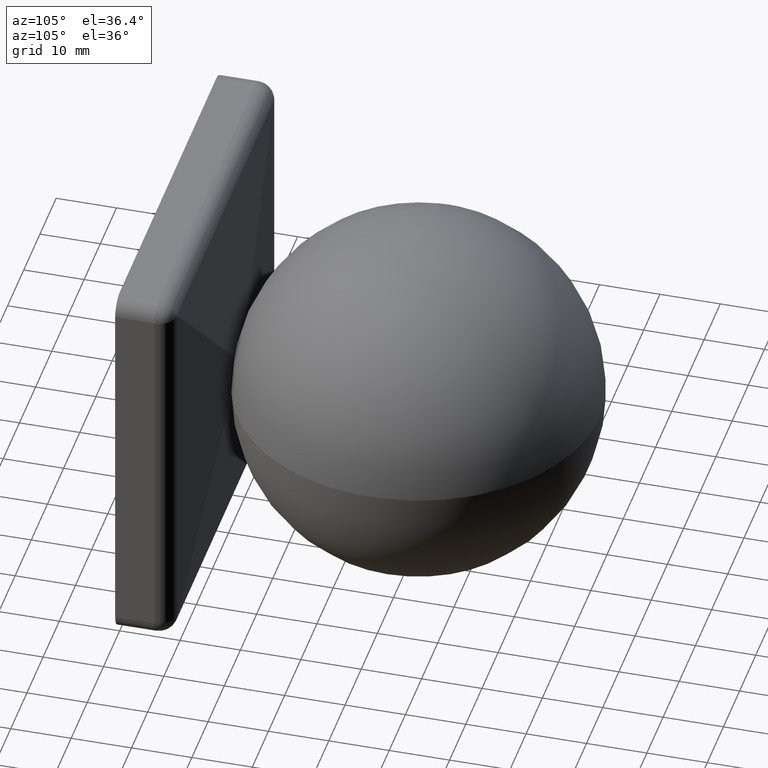
[diagram: clean part render]
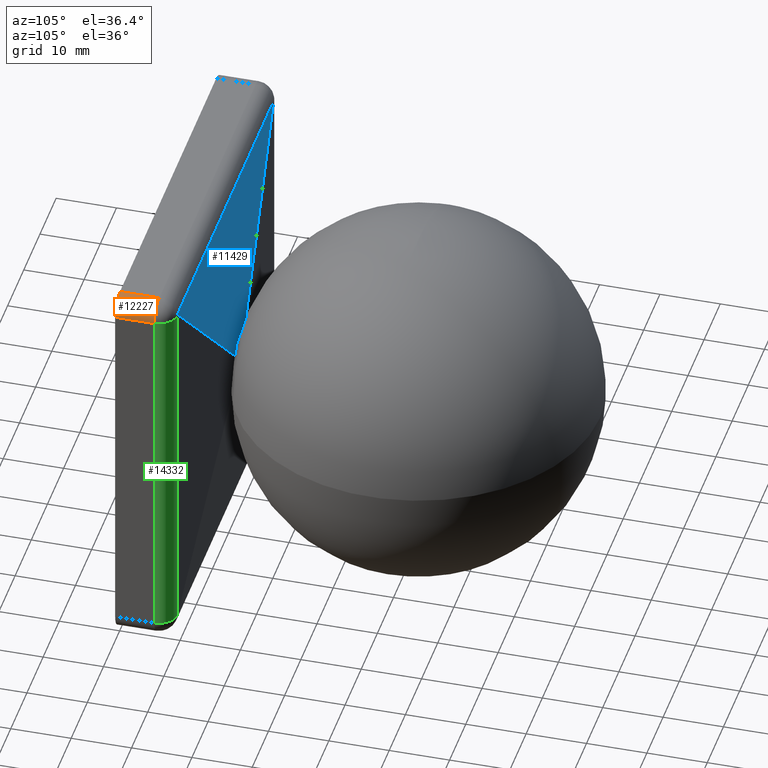
[diagram: same view with three faces highlighted in distinct colors, each labeled with its STEP entity id]
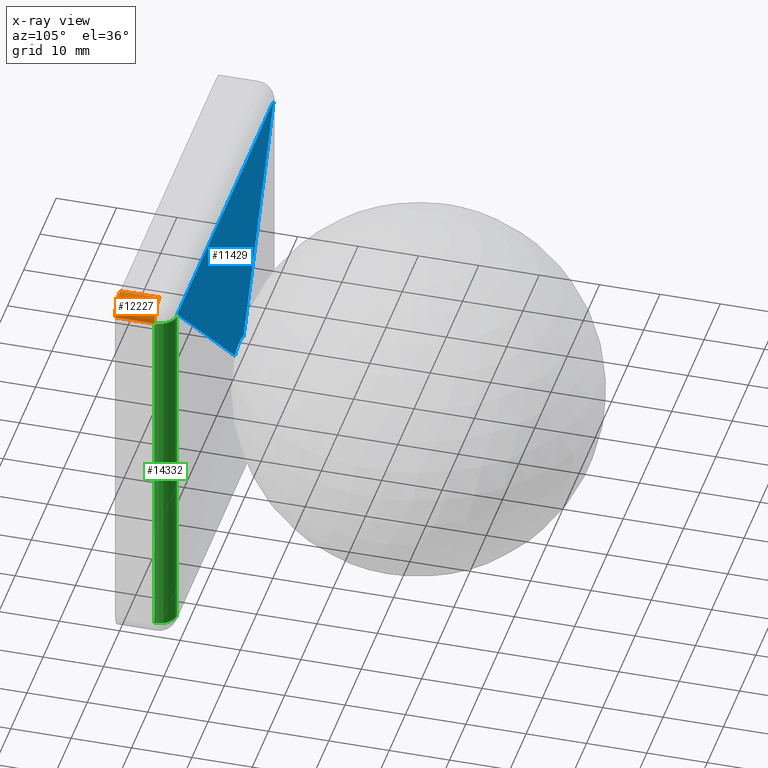
[diagram: x-ray of the same camera — body ghosted, the three highlighted faces saturated]
A machine part, auxiliary view with three faces highlighted in distinct colors.
The next image is the same camera in x-ray (body ghosted, the three faces saturated) — at least one of them is partly hidden behind the body in this view.
Their STEP definitions:

[orange] entity #12227 — the highlighted cylindrical surface (edge-blend (fillet) strip) has radius 3 mm, axis along (0, -1, 0).
#971 = VERTEX_POINT ( 'NONE', #11236 ) ;
#1854 = DIRECTION ( 'NONE',  ( 0.0000000000000000000, -1.000000000000000000, 0.0000000000000000000 ) ) ;
#2121 = CARTESIAN_POINT ( 'NONE',  ( 32.74999999999997200, 6.500000000000000000, 29.75000000000000000 ) ) ;
#2557 = EDGE_CURVE ( 'NONE', #15582, #7247, #12072, .T. ) ;
#2937 = CARTESIAN_POINT ( 'NONE',  ( 32.74999999999997200, 0.0000000000000000000, 29.75000000000000000 ) ) ;
#3769 = CARTESIAN_POINT ( 'NONE',  ( 29.74999999999997500, 12.00000000000000000, 29.75000000000000000 ) ) ;
#3960 = ORIENTED_EDGE ( 'NONE', *, *, #11026, .F. ) ;
#4032 = AXIS2_PLACEMENT_3D ( 'NONE', #8531, #1854, #12515 ) ;
#4244 = ORIENTED_EDGE ( 'NONE', *, *, #2557, .F. ) ;
#4653 = CARTESIAN_POINT ( 'NONE',  ( 32.74999999999997200, 12.00000000000000000, 29.75000000000000000 ) ) ;
#5450 = DIRECTION ( 'NONE',  ( 0.0000000000000000000, 0.0000000000000000000, 1.000000000000000000 ) ) ;
#5669 = VECTOR ( 'NONE', #13859, 1000.000000000000000 ) ;
#6537 = EDGE_CURVE ( 'NONE', #15582, #15337, #10660, .T. ) ;
#7130 = DIRECTION ( 'NONE',  ( 0.0000000000000000000, -1.000000000000000000, 0.0000000000000000000 ) ) ;
#7247 = VERTEX_POINT ( 'NONE', #2937 ) ;
#8011 = CARTESIAN_POINT ( 'NONE',  ( 29.74999999999997500, 6.500000000000000000, 32.74999999999996400 ) ) ;
#8269 = AXIS2_PLACEMENT_3D ( 'NONE', #11984, #13290, #5450 ) ;
#8531 = CARTESIAN_POINT ( 'NONE',  ( 29.74999999999997500, 6.500000000000000900, 29.75000000000000000 ) ) ;
#8546 = FACE_OUTER_BOUND ( 'NONE', #9380, .T. ) ;
#8786 = ORIENTED_EDGE ( 'NONE', *, *, #6537, .T. ) ;
#9016 = DIRECTION ( 'NONE',  ( 0.0000000000000000000, 0.0000000000000000000, -1.000000000000000000 ) ) ;
#9380 = EDGE_LOOP ( 'NONE', ( #4244, #8786, #3960, #10299 ) ) ;
#10231 = AXIS2_PLACEMENT_3D ( 'NONE', #3769, #13967, #9016 ) ;
#10299 = ORIENTED_EDGE ( 'NONE', *, *, #13159, .F. ) ;
#10360 = CYLINDRICAL_SURFACE ( 'NONE', #10231, 2.999999999999999100 ) ;
#10660 = CIRCLE ( 'NONE', #4032, 2.999999999999995600 ) ;
#11026 = EDGE_CURVE ( 'NONE', #971, #15337, #12841, .T. ) ;
#11236 = CARTESIAN_POINT ( 'NONE',  ( 29.74999999999997200, 0.0000000000000000000, 32.75000000000000000 ) ) ;
#11984 = CARTESIAN_POINT ( 'NONE',  ( 29.74999999999997500, 0.0000000000000000000, 29.75000000000000000 ) ) ;
#12072 = LINE ( 'NONE', #4653, #15154 ) ;
#12227 = ADVANCED_FACE ( 'NONE', ( #8546 ), #10360, .T. ) ;
#12398 = CIRCLE ( 'NONE', #8269, 3.000000000000002700 ) ;
#12515 = DIRECTION ( 'NONE',  ( 0.0000000000000000000, 0.0000000000000000000, -1.000000000000000000 ) ) ;
#12841 = LINE ( 'NONE', #16619, #5669 ) ;
#13159 = EDGE_CURVE ( 'NONE', #7247, #971, #12398, .T. ) ;
#13290 = DIRECTION ( 'NONE',  ( -0.0000000000000000000, -1.000000000000000000, -0.0000000000000000000 ) ) ;
#13859 = DIRECTION ( 'NONE',  ( -0.0000000000000000000, 1.000000000000000000, -0.0000000000000000000 ) ) ;
#13967 = DIRECTION ( 'NONE',  ( 0.0000000000000000000, -1.000000000000000000, 0.0000000000000000000 ) ) ;
#15154 = VECTOR ( 'NONE', #7130, 1000.000000000000000 ) ;
#15337 = VERTEX_POINT ( 'NONE', #8011 ) ;
#15582 = VERTEX_POINT ( 'NONE', #2121 ) ;
#16619 = CARTESIAN_POINT ( 'NONE',  ( 29.74999999999997200, 12.00000000000000000, 32.75000000000000000 ) ) ;

[blue] entity #11429 — the highlighted planar face has unit normal (-0, -0.9965, -0.0837).
#1 = LINE ( 'NONE', #8708, #11309 ) ;
#84 = DIRECTION ( 'NONE',  ( -0.7058617423977314700, 0.05931611280653215100, -0.7058617423977314700 ) ) ;
#287 = CIRCLE ( 'NONE', #14106, 6.039178573658209500 ) ;
#656 = EDGE_CURVE ( 'NONE', #10926, #10083, #287, .T. ) ;
#928 = VERTEX_POINT ( 'NONE', #5682 ) ;
#2051 = CARTESIAN_POINT ( 'NONE',  ( 2.680674384043339600, 11.76419654488343300, 2.931889787391667400 ) ) ;
#2280 = DIRECTION ( 'NONE',  ( -1.859367499585374500E-017, -0.9964877666150213600, -0.08373846778277503600 ) ) ;
#2949 = AXIS2_PLACEMENT_3D ( 'NONE', #11470, #2280, #7527 ) ;
#2992 = EDGE_CURVE ( 'NONE', #10926, #5089, #1, .T. ) ;
#4891 = DIRECTION ( 'NONE',  ( 1.859367499585374500E-017, 0.9964877666150213600, 0.08373846778277503600 ) ) ;
#5089 = VERTEX_POINT ( 'NONE', #14001 ) ;
#5682 = CARTESIAN_POINT ( 'NONE',  ( 29.74999999999996800, 9.489463299845061400, 30.00121540334829000 ) ) ;
#6613 = DIRECTION ( 'NONE',  ( -1.000000000000000000, -0.0000000000000000000, 2.220446049250313100E-016 ) ) ;
#7495 = EDGE_CURVE ( 'NONE', #928, #5089, #10246, .T. ) ;
#7527 = DIRECTION ( 'NONE',  ( 0.0000000000000000000, 0.08373846778277503600, -0.9964877666150213600 ) ) ;
#7869 = ORIENTED_EDGE ( 'NONE', *, *, #7495, .F. ) ;
#8708 = CARTESIAN_POINT ( 'NONE',  ( -29.87516576338098800, 9.478945168468506200, 30.12638116672932000 ) ) ;
#8898 = PLANE ( 'NONE',  #2949 ) ;
#10083 = VERTEX_POINT ( 'NONE', #2051 ) ;
#10246 = LINE ( 'NONE', #13298, #15167 ) ;
#10926 = VERTEX_POINT ( 'NONE', #12393 ) ;
#10930 = LINE ( 'NONE', #17021, #12157 ) ;
#11102 = DIRECTION ( 'NONE',  ( -0.7058617423977313600, -0.05931611280653213000, 0.7058617423977315800 ) ) ;
#11309 = VECTOR ( 'NONE', #11102, 1000.000000000000100 ) ;
#11429 = ADVANCED_FACE ( 'NONE', ( #15704 ), #8898, .F. ) ;
#11470 = CARTESIAN_POINT ( 'NONE',  ( 32.74999999999997900, 11.92635412096560200, 1.002214632013910500 ) ) ;
#11701 = EDGE_LOOP ( 'NONE', ( #14249, #13480, #7869, #15942 ) ) ;
#12157 = VECTOR ( 'NONE', #84, 1000.000000000000100 ) ;
#12393 = CARTESIAN_POINT ( 'NONE',  ( -2.680674384043377800, 11.76419654488343600, 2.931889787391692300 ) ) ;
#12404 = CARTESIAN_POINT ( 'NONE',  ( -5.463909892804144000E-016, 12.21735755690978000, -2.460726255721871000 ) ) ;
#13298 = CARTESIAN_POINT ( 'NONE',  ( 32.74999999999998600, 9.489463299845061400, 30.00121540334829000 ) ) ;
#13480 = ORIENTED_EDGE ( 'NONE', *, *, #2992, .T. ) ;
#14001 = CARTESIAN_POINT ( 'NONE',  ( -29.74999999999997200, 9.489463299845061400, 30.00121540334830400 ) ) ;
#14106 = AXIS2_PLACEMENT_3D ( 'NONE', #12404, #4891, #15428 ) ;
#14249 = ORIENTED_EDGE ( 'NONE', *, *, #656, .F. ) ;
#14603 = EDGE_CURVE ( 'NONE', #928, #10083, #10930, .T. ) ;
#15167 = VECTOR ( 'NONE', #6613, 1000.000000000000000 ) ;
#15428 = DIRECTION ( 'NONE',  ( 0.0000000000000000000, 0.08373846778277513300, -0.9964877666150212500 ) ) ;
#15704 = FACE_OUTER_BOUND ( 'NONE', #11701, .T. ) ;
#15942 = ORIENTED_EDGE ( 'NONE', *, *, #14603, .T. ) ;
#17021 = CARTESIAN_POINT ( 'NONE',  ( 16.69420695236083300, 10.58658876603322700, 16.94542235570916200 ) ) ;

[green] entity #14332 — the highlighted cylindrical surface (edge-blend (fillet) strip) has radius 3 mm, axis along (-0, -0, 1).
#417 = DIRECTION ( 'NONE',  ( 1.000000000000000000, 8.673617379884027600E-016, 0.0000000000000000000 ) ) ;
#532 = DIRECTION ( 'NONE',  ( -0.0000000000000000000, -0.0000000000000000000, 1.000000000000000000 ) ) ;
#755 = AXIS2_PLACEMENT_3D ( 'NONE', #7332, #532, #5888 ) ;
#784 = VERTEX_POINT ( 'NONE', #17026 ) ;
#1062 = LINE ( 'NONE', #2707, #5161 ) ;
#1315 = CARTESIAN_POINT ( 'NONE',  ( 30.00121540334829700, 9.489463299845061400, 29.74999999999997200 ) ) ;
#2121 = CARTESIAN_POINT ( 'NONE',  ( 32.74999999999997200, 6.500000000000000000, 29.75000000000000000 ) ) ;
#2348 = CIRCLE ( 'NONE', #3191, 3.000000000000002700 ) ;
#2404 = ORIENTED_EDGE ( 'NONE', *, *, #6280, .T. ) ;
#2630 = LINE ( 'NONE', #10286, #3261 ) ;
#2707 = CARTESIAN_POINT ( 'NONE',  ( 32.74999999999997200, 6.500000000000000000, -32.75000000000000000 ) ) ;
#2802 = CARTESIAN_POINT ( 'NONE',  ( 29.74999999999997200, 6.500000000000000900, -32.75000000000000000 ) ) ;
#2892 = CIRCLE ( 'NONE', #755, 3.000000000000002700 ) ;
#3191 = AXIS2_PLACEMENT_3D ( 'NONE', #11154, #3303, #417 ) ;
#3261 = VECTOR ( 'NONE', #15438, 1000.000000000000000 ) ;
#3303 = DIRECTION ( 'NONE',  ( 0.0000000000000000000, 0.0000000000000000000, -1.000000000000000000 ) ) ;
#4539 = ORIENTED_EDGE ( 'NONE', *, *, #15240, .T. ) ;
#5161 = VECTOR ( 'NONE', #9281, 1000.000000000000000 ) ;
#5888 = DIRECTION ( 'NONE',  ( 1.000000000000000000, 0.0000000000000000000, 0.0000000000000000000 ) ) ;
#6280 = EDGE_CURVE ( 'NONE', #784, #8585, #2630, .T. ) ;
#6907 = VERTEX_POINT ( 'NONE', #10032 ) ;
#7332 = CARTESIAN_POINT ( 'NONE',  ( 29.74999999999997200, 6.500000000000000900, -29.74999999999997900 ) ) ;
#7861 = ORIENTED_EDGE ( 'NONE', *, *, #12653, .T. ) ;
#8182 = DIRECTION ( 'NONE',  ( 1.000000000000000000, 0.0000000000000000000, 0.0000000000000000000 ) ) ;
#8585 = VERTEX_POINT ( 'NONE', #1315 ) ;
#9165 = EDGE_LOOP ( 'NONE', ( #2404, #7861, #12625, #4539 ) ) ;
#9281 = DIRECTION ( 'NONE',  ( -0.0000000000000000000, -0.0000000000000000000, 1.000000000000000000 ) ) ;
#9919 = CYLINDRICAL_SURFACE ( 'NONE', #11004, 3.000000000000002700 ) ;
#10032 = CARTESIAN_POINT ( 'NONE',  ( 32.74999999999997200, 6.500000000000000000, -29.75000000000000400 ) ) ;
#10286 = CARTESIAN_POINT ( 'NONE',  ( 30.00121540334829700, 9.489463299845061400, -32.75000000000000000 ) ) ;
#11004 = AXIS2_PLACEMENT_3D ( 'NONE', #2802, #12110, #8182 ) ;
#11154 = CARTESIAN_POINT ( 'NONE',  ( 29.74999999999997200, 6.500000000000000900, 29.74999999999996400 ) ) ;
#12110 = DIRECTION ( 'NONE',  ( -0.0000000000000000000, -0.0000000000000000000, 1.000000000000000000 ) ) ;
#12625 = ORIENTED_EDGE ( 'NONE', *, *, #15089, .F. ) ;
#12653 = EDGE_CURVE ( 'NONE', #8585, #15582, #2348, .T. ) ;
#12977 = FACE_OUTER_BOUND ( 'NONE', #9165, .T. ) ;
#14332 = ADVANCED_FACE ( 'NONE', ( #12977 ), #9919, .T. ) ;
#15089 = EDGE_CURVE ( 'NONE', #6907, #15582, #1062, .T. ) ;
#15240 = EDGE_CURVE ( 'NONE', #6907, #784, #2892, .T. ) ;
#15438 = DIRECTION ( 'NONE',  ( -0.0000000000000000000, -0.0000000000000000000, 1.000000000000000000 ) ) ;
#15582 = VERTEX_POINT ( 'NONE', #2121 ) ;
#17026 = CARTESIAN_POINT ( 'NONE',  ( 30.00121540334829700, 9.489463299845061400, -29.74999999999997500 ) ) ;